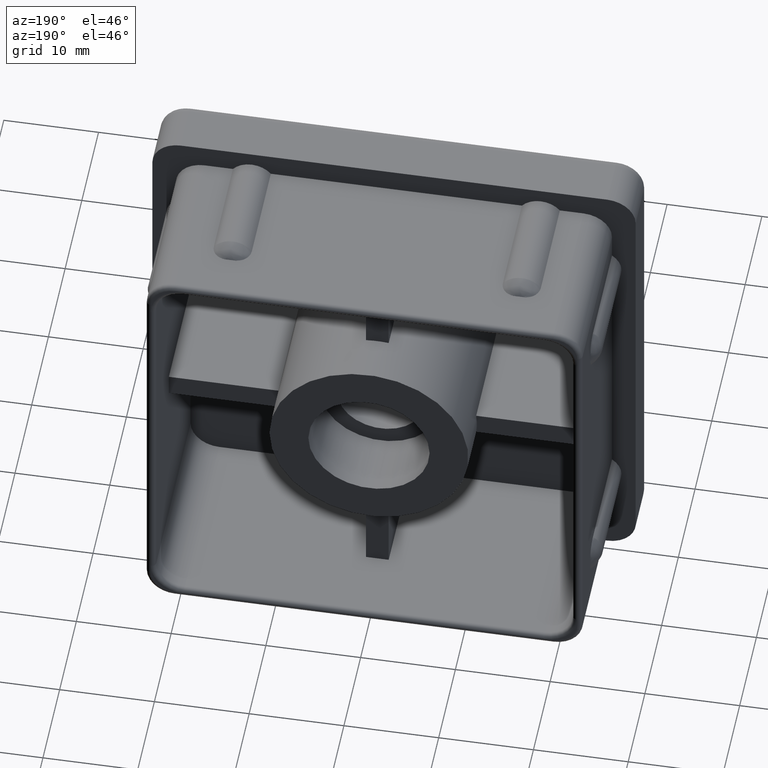
[diagram: clean part render]
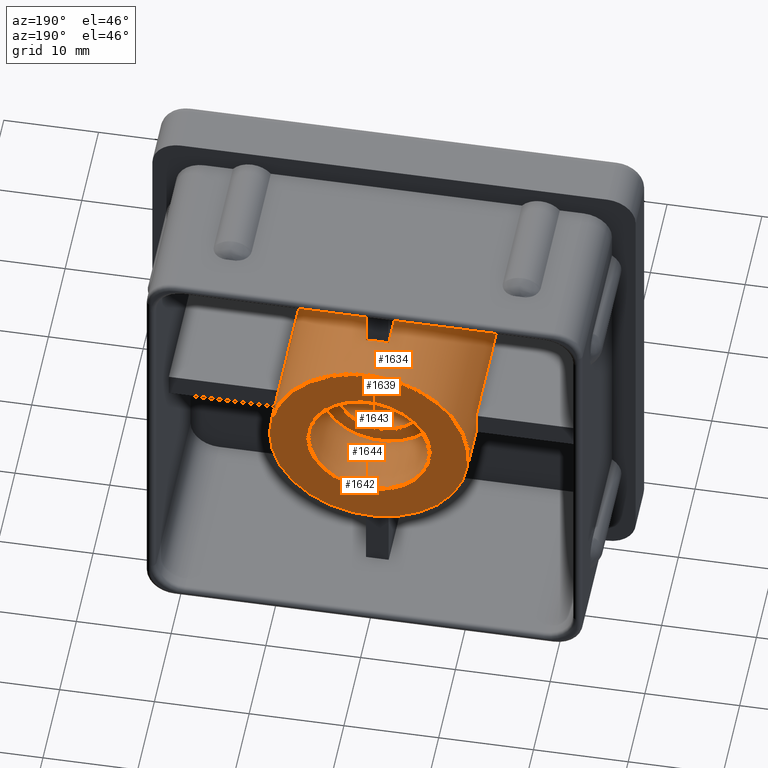
[diagram: same view with one multi-face feature highlighted, each face labeled with its STEP entity id]
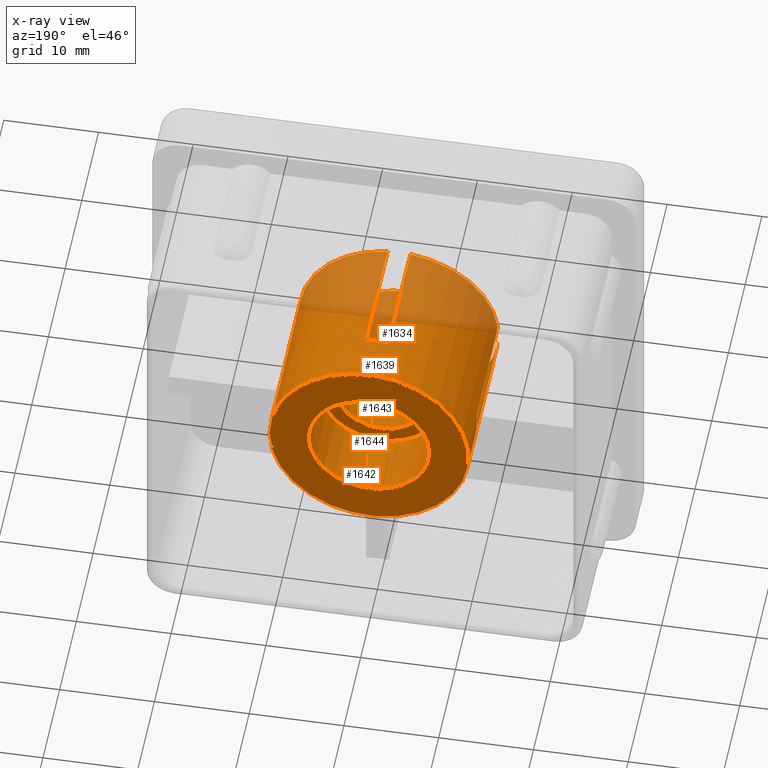
[diagram: x-ray of the same camera — body ghosted, the whole feature saturated]
A machine part, auxiliary view. The highlighted faces form ONE feature: a stepped (counterbored) hole: 3 coaxial cylindrical walls of radii 4.6 -> 6.4 -> 10.5 mm joined by 2 annular planar shoulder face(s). The faces share edges in the B-rep.
The next image is the same camera in x-ray: the body ghosted and the whole hole feature saturated, so the bore chain is visible through the body.
Their STEP definitions:
[1] entity #1634 (Cylinder):
#30=FACE_BOUND('',#361,.T.);
#143=CIRCLE('',#1765,10.5);
#144=CIRCLE('',#1767,10.5);
#146=CIRCLE('',#1781,10.5);
#147=CIRCLE('',#1785,10.5);
#148=CIRCLE('',#1789,10.5);
#149=CIRCLE('',#1791,10.5);
#150=CIRCLE('',#1793,10.5);
#151=CIRCLE('',#1795,10.5);
#152=CIRCLE('',#1796,10.5);
#187=CYLINDRICAL_SURFACE('',#1794,10.5);
#268=FACE_OUTER_BOUND('',#360,.T.);
#360=EDGE_LOOP('',(#1494));
#361=EDGE_LOOP('',(#1495,#1496,#1497,#1498,#1499,#1500,#1501,#1502,#1503,
#1504,#1505,#1506,#1507,#1508,#1509,#1510));
#489=LINE('',#3937,#621);
#491=LINE('',#3942,#623);
#494=LINE('',#3950,#626);
#497=LINE('',#3955,#629);
#499=LINE('',#3961,#631);
#502=LINE('',#3968,#634);
#509=LINE('',#3988,#641);
#510=LINE('',#3991,#642);
#621=VECTOR('',#2185,13.);
#623=VECTOR('',#2189,13.);
#626=VECTOR('',#2198,13.);
#629=VECTOR('',#2203,13.);
#631=VECTOR('',#2211,13.);
#634=VECTOR('',#2216,13.);
#641=VECTOR('',#2239,13.);
#642=VECTOR('',#2242,13.);
#796=VERTEX_POINT('',#3893);
#797=VERTEX_POINT('',#3895);
#800=VERTEX_POINT('',#3903);
#801=VERTEX_POINT('',#3905);
#807=VERTEX_POINT('',#3936);
#808=VERTEX_POINT('',#3940);
#809=VERTEX_POINT('',#3941);
#810=VERTEX_POINT('',#3948);
#811=VERTEX_POINT('',#3949);
#812=VERTEX_POINT('',#3954);
#813=VERTEX_POINT('',#3960);
#815=VERTEX_POINT('',#3966);
#816=VERTEX_POINT('',#3967);
#819=VERTEX_POINT('',#3981);
#820=VERTEX_POINT('',#3985);
#821=VERTEX_POINT('',#3987);
#822=VERTEX_POINT('',#3989);
#1012=EDGE_CURVE('',#796,#797,#143,.T.);
#1017=EDGE_CURVE('',#800,#801,#144,.T.);
#1032=EDGE_CURVE('',#807,#801,#489,.T.);
#1034=EDGE_CURVE('',#808,#809,#491,.T.);
#1037=EDGE_CURVE('',#809,#807,#146,.T.);
#1038=EDGE_CURVE('',#810,#811,#494,.T.);
#1041=EDGE_CURVE('',#800,#812,#497,.T.);
#1043=EDGE_CURVE('',#812,#810,#147,.T.);
#1044=EDGE_CURVE('',#813,#797,#499,.T.);
#1047=EDGE_CURVE('',#815,#816,#502,.T.);
#1051=EDGE_CURVE('',#816,#813,#148,.T.);
#1054=EDGE_CURVE('',#815,#811,#149,.T.);
#1055=EDGE_CURVE('',#808,#819,#150,.T.);
#1057=EDGE_CURVE('',#820,#820,#151,.T.);
#1058=EDGE_CURVE('',#796,#821,#509,.T.);
#1059=EDGE_CURVE('',#821,#822,#152,.T.);
#1060=EDGE_CURVE('',#822,#819,#510,.T.);
#1494=ORIENTED_EDGE('',*,*,#1057,.T.);
#1495=ORIENTED_EDGE('',*,*,#1034,.T.);
#1496=ORIENTED_EDGE('',*,*,#1037,.T.);
#1497=ORIENTED_EDGE('',*,*,#1032,.T.);
#1498=ORIENTED_EDGE('',*,*,#1017,.F.);
#1499=ORIENTED_EDGE('',*,*,#1041,.T.);
#1500=ORIENTED_EDGE('',*,*,#1043,.T.);
#1501=ORIENTED_EDGE('',*,*,#1038,.T.);
#1502=ORIENTED_EDGE('',*,*,#1054,.F.);
#1503=ORIENTED_EDGE('',*,*,#1047,.T.);
#1504=ORIENTED_EDGE('',*,*,#1051,.T.);
#1505=ORIENTED_EDGE('',*,*,#1044,.T.);
#1506=ORIENTED_EDGE('',*,*,#1012,.F.);
#1507=ORIENTED_EDGE('',*,*,#1058,.T.);
#1508=ORIENTED_EDGE('',*,*,#1059,.T.);
#1509=ORIENTED_EDGE('',*,*,#1060,.T.);
#1510=ORIENTED_EDGE('',*,*,#1055,.F.);
#1634=ADVANCED_FACE('',(#268,#30),#187,.T.);
#1765=AXIS2_PLACEMENT_3D('',#3896,#2140,#2141);
#1767=AXIS2_PLACEMENT_3D('',#3906,#2148,#2149);
#1781=AXIS2_PLACEMENT_3D('',#3946,#2194,#2195);
#1785=AXIS2_PLACEMENT_3D('',#3958,#2207,#2208);
#1789=AXIS2_PLACEMENT_3D('',#3975,#2222,#2223);
#1791=AXIS2_PLACEMENT_3D('',#3979,#2228,#2229);
#1793=AXIS2_PLACEMENT_3D('',#3982,#2232,#2233);
#1794=AXIS2_PLACEMENT_3D('',#3984,#2235,#2236);
#1795=AXIS2_PLACEMENT_3D('',#3986,#2237,#2238);
#1796=AXIS2_PLACEMENT_3D('',#3990,#2240,#2241);
#2140=DIRECTION('center_axis',(0.,-1.,0.));
#2141=DIRECTION('ref_axis',(-1.,0.,0.));
#2148=DIRECTION('center_axis',(0.,-1.,0.));
#2149=DIRECTION('ref_axis',(-1.,0.,0.));
#2185=DIRECTION('',(0.,-1.,0.));
#2189=DIRECTION('',(0.,1.,0.));
#2194=DIRECTION('center_axis',(0.,1.,0.));
#2195=DIRECTION('ref_axis',(-1.,0.,0.));
#2198=DIRECTION('',(0.,-1.,0.));
#2203=DIRECTION('',(0.,1.,0.));
#2207=DIRECTION('center_axis',(0.,1.,0.));
#2208=DIRECTION('ref_axis',(-1.,0.,0.));
#2211=DIRECTION('',(0.,-1.,0.));
#2216=DIRECTION('',(0.,1.,0.));
#2222=DIRECTION('center_axis',(0.,1.,0.));
#2223=DIRECTION('ref_axis',(-1.,0.,0.));
#2228=DIRECTION('center_axis',(0.,-1.,0.));
#2229=DIRECTION('ref_axis',(-1.,0.,0.));
#2232=DIRECTION('center_axis',(0.,-1.,0.));
#2233=DIRECTION('ref_axis',(-1.,0.,0.));
#2235=DIRECTION('center_axis',(0.,-1.,0.));
#2236=DIRECTION('ref_axis',(-1.,0.,0.));
#2237=DIRECTION('center_axis',(0.,-1.,0.));
#2238=DIRECTION('ref_axis',(-1.,0.,0.));
#2239=DIRECTION('',(0.,1.,0.));
#2240=DIRECTION('center_axis',(0.,1.,0.));
#2241=DIRECTION('ref_axis',(-1.,0.,0.));
#2242=DIRECTION('',(0.,-1.,0.));
#3893=CARTESIAN_POINT('',(10.4312031904282,-3.,1.2));
#3895=CARTESIAN_POINT('',(1.2,-3.,10.4312031904282));
#3896=CARTESIAN_POINT('Origin',(0.,-3.,0.));
#3903=CARTESIAN_POINT('',(-10.4312031904282,-3.,-1.2));
#3905=CARTESIAN_POINT('',(-1.2,-3.,-10.4312031904282));
#3906=CARTESIAN_POINT('Origin',(0.,-3.,0.));
#3936=CARTESIAN_POINT('',(-1.2,10.,-10.4312031904282));
#3937=CARTESIAN_POINT('',(-1.2,15.,-10.4312031904282));
#3940=CARTESIAN_POINT('',(1.2,-3.,-10.4312031904282));
#3941=CARTESIAN_POINT('',(1.2,10.,-10.4312031904282));
#3942=CARTESIAN_POINT('',(1.2,15.,-10.4312031904282));
#3946=CARTESIAN_POINT('Origin',(0.,10.,0.));
#3948=CARTESIAN_POINT('',(-10.4312031904282,10.,1.2));
#3949=CARTESIAN_POINT('',(-10.4312031904282,-3.,1.2));
#3950=CARTESIAN_POINT('',(-10.4312031904282,15.,1.2));
#3954=CARTESIAN_POINT('',(-10.4312031904282,10.,-1.2));
#3955=CARTESIAN_POINT('',(-10.4312031904282,15.,-1.2));
#3958=CARTESIAN_POINT('Origin',(0.,10.,0.));
#3960=CARTESIAN_POINT('',(1.2,10.,10.4312031904282));
#3961=CARTESIAN_POINT('',(1.2,15.,10.4312031904282));
#3966=CARTESIAN_POINT('',(-1.2,-3.,10.4312031904282));
#3967=CARTESIAN_POINT('',(-1.2,10.,10.4312031904282));
#3968=CARTESIAN_POINT('',(-1.2,15.,10.4312031904282));
#3975=CARTESIAN_POINT('Origin',(0.,10.,0.));
#3979=CARTESIAN_POINT('Origin',(0.,-3.,0.));
#3981=CARTESIAN_POINT('',(10.4312031904282,-3.,-1.2));
#3982=CARTESIAN_POINT('Origin',(0.,-3.,0.));
#3984=CARTESIAN_POINT('Origin',(0.,15.,0.));
#3985=CARTESIAN_POINT('',(10.5,15.,-1.28587913910472E-15));
#3986=CARTESIAN_POINT('Origin',(0.,15.,0.));
#3987=CARTESIAN_POINT('',(10.4312031904282,10.,1.2));
#3988=CARTESIAN_POINT('',(10.4312031904282,15.,1.2));
#3989=CARTESIAN_POINT('',(10.4312031904282,10.,-1.2));
#3990=CARTESIAN_POINT('Origin',(0.,10.,0.));
#3991=CARTESIAN_POINT('',(10.4312031904282,15.,-1.2));
[2] entity #1642 (Cylinder):
#35=FACE_BOUND('',#374,.T.);
#157=CIRCLE('',#1809,6.4);
#158=CIRCLE('',#1810,6.4);
#190=CYLINDRICAL_SURFACE('',#1808,6.4);
#276=FACE_OUTER_BOUND('',#373,.T.);
#373=EDGE_LOOP('',(#1531));
#374=EDGE_LOOP('',(#1532));
#827=VERTEX_POINT('',#4010);
#828=VERTEX_POINT('',#4012);
#1067=EDGE_CURVE('',#827,#827,#157,.T.);
#1068=EDGE_CURVE('',#828,#828,#158,.T.);
#1531=ORIENTED_EDGE('',*,*,#1067,.T.);
#1532=ORIENTED_EDGE('',*,*,#1068,.F.);
#1642=ADVANCED_FACE('',(#276,#35),#190,.F.);
#1808=AXIS2_PLACEMENT_3D('',#4009,#2267,#2268);
#1809=AXIS2_PLACEMENT_3D('',#4011,#2269,#2270);
#1810=AXIS2_PLACEMENT_3D('',#4013,#2271,#2272);
#2267=DIRECTION('center_axis',(0.,-1.,0.));
#2268=DIRECTION('ref_axis',(-1.,0.,0.));
#2269=DIRECTION('center_axis',(0.,-1.,0.));
#2270=DIRECTION('ref_axis',(-1.,0.,0.));
#2271=DIRECTION('center_axis',(0.,-1.,0.));
#2272=DIRECTION('ref_axis',(-1.,0.,0.));
#4009=CARTESIAN_POINT('Origin',(0.,15.,0.));
#4010=CARTESIAN_POINT('',(6.4,8.,-7.83773951454306E-16));
#4011=CARTESIAN_POINT('Origin',(0.,8.,0.));
#4012=CARTESIAN_POINT('',(6.4,15.,-7.83773951454306E-16));
#4013=CARTESIAN_POINT('Origin',(0.,15.,0.));
[3] entity #1639 (Cylinder):
#32=FACE_BOUND('',#368,.T.);
#154=CIRCLE('',#1802,4.6);
#155=CIRCLE('',#1804,4.6);
#188=CYLINDRICAL_SURFACE('',#1803,4.6);
#273=FACE_OUTER_BOUND('',#367,.T.);
#367=EDGE_LOOP('',(#1525));
#368=EDGE_LOOP('',(#1526));
#824=VERTEX_POINT('',#4000);
#825=VERTEX_POINT('',#4003);
#1064=EDGE_CURVE('',#824,#824,#154,.T.);
#1065=EDGE_CURVE('',#825,#825,#155,.T.);
#1525=ORIENTED_EDGE('',*,*,#1065,.F.);
#1526=ORIENTED_EDGE('',*,*,#1064,.T.);
#1639=ADVANCED_FACE('',(#273,#32),#188,.F.);
#1802=AXIS2_PLACEMENT_3D('',#4001,#2255,#2256);
#1803=AXIS2_PLACEMENT_3D('',#4002,#2257,#2258);
#1804=AXIS2_PLACEMENT_3D('',#4004,#2259,#2260);
#2255=DIRECTION('center_axis',(0.,-1.,0.));
#2256=DIRECTION('ref_axis',(1.,0.,0.));
#2257=DIRECTION('center_axis',(0.,-1.,0.));
#2258=DIRECTION('ref_axis',(1.,0.,0.));
#2259=DIRECTION('center_axis',(0.,-1.,0.));
#2260=DIRECTION('ref_axis',(1.,0.,0.));
#4000=CARTESIAN_POINT('',(4.6,-3.1,0.));
#4001=CARTESIAN_POINT('Origin',(0.,-3.1,0.));
#4002=CARTESIAN_POINT('Origin',(0.,72.5131567559196,0.));
#4003=CARTESIAN_POINT('',(-4.6,8.00000000000001,-5.63337527607783E-16));
#4004=CARTESIAN_POINT('Origin',(0.,8.00000000000001,0.));
[4] entity #1644 (Plane):
#37=FACE_BOUND('',#378,.T.);
#72=PLANE('',#1812);
#151=CIRCLE('',#1795,10.5);
#158=CIRCLE('',#1810,6.4);
#278=FACE_OUTER_BOUND('',#377,.T.);
#377=EDGE_LOOP('',(#1535));
#378=EDGE_LOOP('',(#1536));
#820=VERTEX_POINT('',#3985);
#828=VERTEX_POINT('',#4012);
#1057=EDGE_CURVE('',#820,#820,#151,.T.);
#1068=EDGE_CURVE('',#828,#828,#158,.T.);
#1535=ORIENTED_EDGE('',*,*,#1057,.F.);
#1536=ORIENTED_EDGE('',*,*,#1068,.T.);
#1644=ADVANCED_FACE('',(#278,#37),#72,.T.);
#1795=AXIS2_PLACEMENT_3D('',#3986,#2237,#2238);
#1810=AXIS2_PLACEMENT_3D('',#4013,#2271,#2272);
#1812=AXIS2_PLACEMENT_3D('',#4015,#2275,#2276);
#2237=DIRECTION('center_axis',(0.,-1.,0.));
#2238=DIRECTION('ref_axis',(-1.,0.,0.));
#2271=DIRECTION('center_axis',(0.,-1.,0.));
#2272=DIRECTION('ref_axis',(-1.,0.,0.));
#2275=DIRECTION('center_axis',(0.,1.,0.));
#2276=DIRECTION('ref_axis',(0.,0.,1.));
#3985=CARTESIAN_POINT('',(10.5,15.,-1.28587913910472E-15));
#3986=CARTESIAN_POINT('Origin',(0.,15.,0.));
#4012=CARTESIAN_POINT('',(6.4,15.,-7.83773951454306E-16));
#4013=CARTESIAN_POINT('Origin',(0.,15.,0.));
#4015=CARTESIAN_POINT('Origin',(-4.5960834877465E-16,15.,-1.76225876924628E-16));
[5] entity #1643 (Plane):
#36=FACE_BOUND('',#376,.T.);
#71=PLANE('',#1811);
#155=CIRCLE('',#1804,4.6);
#157=CIRCLE('',#1809,6.4);
#277=FACE_OUTER_BOUND('',#375,.T.);
#375=EDGE_LOOP('',(#1533));
#376=EDGE_LOOP('',(#1534));
#825=VERTEX_POINT('',#4003);
#827=VERTEX_POINT('',#4010);
#1065=EDGE_CURVE('',#825,#825,#155,.T.);
#1067=EDGE_CURVE('',#827,#827,#157,.T.);
#1533=ORIENTED_EDGE('',*,*,#1067,.F.);
#1534=ORIENTED_EDGE('',*,*,#1065,.T.);
#1643=ADVANCED_FACE('',(#277,#36),#71,.T.);
#1804=AXIS2_PLACEMENT_3D('',#4004,#2259,#2260);
#1809=AXIS2_PLACEMENT_3D('',#4011,#2269,#2270);
#1811=AXIS2_PLACEMENT_3D('',#4014,#2273,#2274);
#2259=DIRECTION('center_axis',(0.,-1.,0.));
#2260=DIRECTION('ref_axis',(1.,0.,0.));
#2269=DIRECTION('center_axis',(0.,-1.,0.));
#2270=DIRECTION('ref_axis',(-1.,0.,0.));
#2273=DIRECTION('center_axis',(0.,1.,0.));
#2274=DIRECTION('ref_axis',(0.,0.,1.));
#4003=CARTESIAN_POINT('',(-4.6,8.00000000000001,-5.63337527607783E-16));
#4004=CARTESIAN_POINT('Origin',(0.,8.00000000000001,0.));
#4010=CARTESIAN_POINT('',(6.4,8.,-7.83773951454306E-16));
#4011=CARTESIAN_POINT('Origin',(0.,8.,0.));
#4014=CARTESIAN_POINT('Origin',(-6.53144959545255E-17,8.00000000000001,
0.));